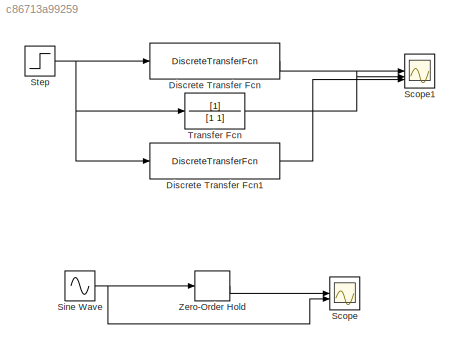
MODEL slx_c86713a99259
KIND model
CONFIG AbsTol = auto
CONFIG EnableMultiTasking = off
CONFIG FixedStep = Ts
CONFIG MaxStep = .002
CONFIG MinStep = auto
CONFIG RelTol = 1e-3
CONFIG SampleTimeConstraint = Unconstrained
CONFIG SolverName = ode15s
CONFIG StartTime = 0.0
CONFIG StopTime = inf
WORKSPACE source: MATLAB code (in-file)
WORKSPACE code: clc
WORKSPACE code: clear
WORKSPACE Ts = .002  (= 0.002)
BLOCK [DiscreteTransferFcn] Discrete Transfer Fcn
  Denominator = [1 -exp(-Ts)]
  InputPortMap = u0
  Numerator = [1-exp(-Ts)]
BLOCK [DiscreteTransferFcn] Discrete Transfer Fcn1
  Denominator = [1 -.37]
  InputPortMap = u0
  Numerator = [.63]
BLOCK [Scope] Scope
  Floating = off
  NumInputPorts = 2
  ScopeSpecificationString = Simulink.scopes.TimeScopeBlockCfg('CurrentConfiguration', extmgr.ConfigurationSet(extmgr.Configuration('Core','General UI',true),extmgr.Configuration('Core','Source UI',true),extmgr.Configuration('Sources','WiredSimulink',true),extmgr.Configuration('Visuals','Time Domain',true,'SerializedDisplays',{struct('MinYLimReal','0.46741','MaxYLimReal','1.08836','YLabelReal','','MinYLimMag','0.46741','MaxYL...<+1478ch>
BLOCK [Scope] Scope1
  Floating = off
  NumInputPorts = 3
  ScopeSpecificationString = Simulink.scopes.TimeScopeBlockCfg('CurrentConfiguration', extmgr.ConfigurationSet(extmgr.Configuration('Core','General UI',true),extmgr.Configuration('Core','Source UI',true),extmgr.Configuration('Sources','WiredSimulink',true,'DataLoggingVariableName','ScopeData1'),extmgr.Configuration('Visuals','Time Domain',true,'SerializedDisplays',{struct('MinYLimReal','-0.12275','MaxYLimReal','1.12475','YLab...<+1528ch>
BLOCK [Sin] Sine Wave
  SampleTime = 0
BLOCK [Step] Step
  SampleTime = 0
BLOCK [TransferFcn] Transfer Fcn
  Denominator = [1 1]
BLOCK [ZeroOrderHold] Zero-Order Hold
  SampleTime = .2
LINE Discrete Transfer Fcn1:1 -> Scope1:3
LINE Discrete Transfer Fcn:1 -> Scope1:1
NET Sine Wave:1 -> Scope:2, Zero-Order Hold:1
NET Step:1 -> Discrete Transfer Fcn1:1, Discrete Transfer Fcn:1, Transfer Fcn:1
LINE Transfer Fcn:1 -> Scope1:2
LINE Zero-Order Hold:1 -> Scope:1
note: NET lines group one-source signal fan-out (src -> all destinations, sorted); 1:1 wires keep LINE
